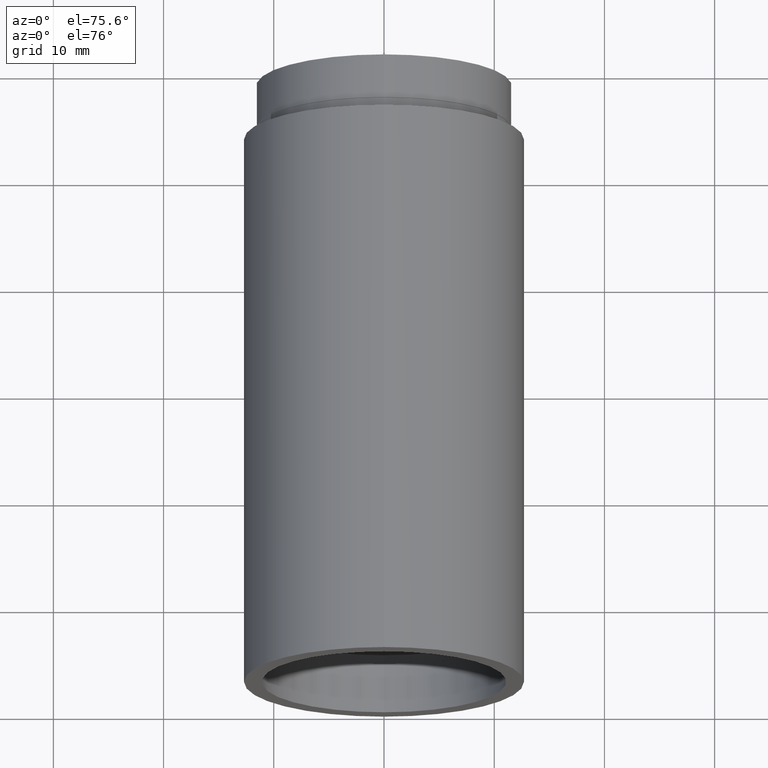
[diagram: clean part render]
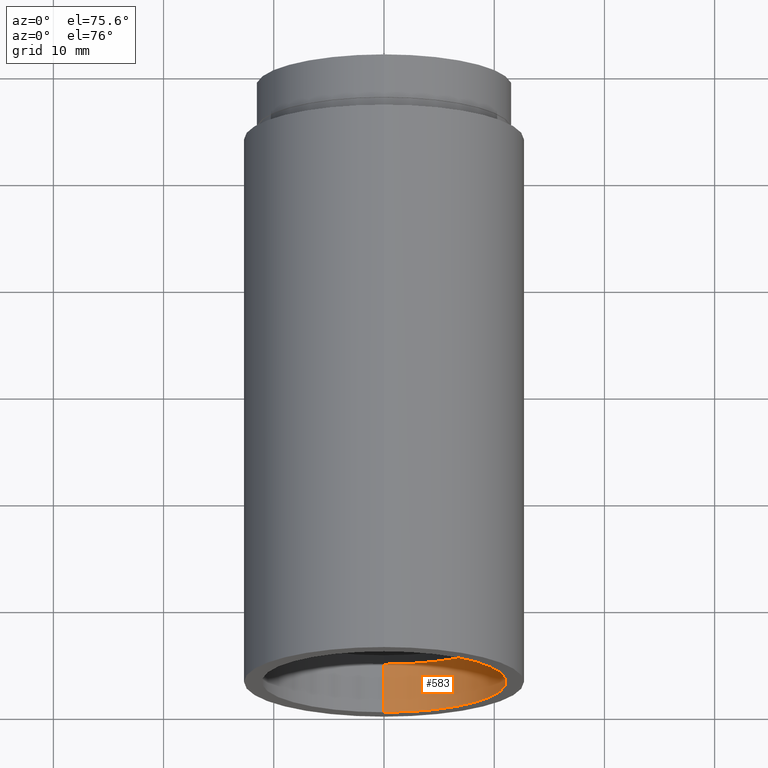
[diagram: same view with one face highlighted and labeled with its STEP entity id]
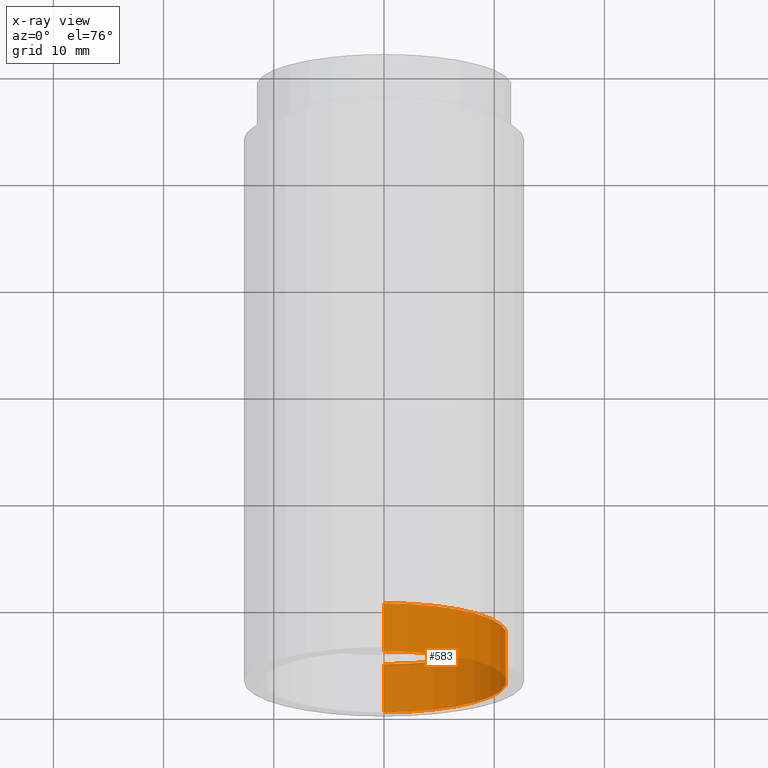
[diagram: x-ray of the same camera — body ghosted, the highlighted face saturated]
A machine part, auxiliary view. The second image highlights one B-rep face of the part: STEP entity #583.
The next image is the same camera in x-ray: the body ghosted, the highlighted face saturated — about 0% of this face is hidden behind the body in this view.
In plain terms, the highlighted cylindrical surface (partial cylindrical patch) has radius 11.1 mm, axis along (-0, 1, -0).
Its self-contained STEP definition (entity closure, byte-faithful):
#1 = AXIS2_PLACEMENT_3D ( 'NONE', #265, #24, #215 ) ;
#8 = DIRECTION ( 'NONE',  ( -0.0000000000000000000, 1.000000000000000000, -0.0000000000000000000 ) ) ;
#24 = DIRECTION ( 'NONE',  ( -0.0000000000000000000, 1.000000000000000000, -0.0000000000000000000 ) ) ;
#77 = VECTOR ( 'NONE', #286, 1000.000000000000000 ) ;
#84 = CIRCLE ( 'NONE', #1, 11.10000000000001700 ) ;
#113 = LINE ( 'NONE', #546, #624 ) ;
#146 = CYLINDRICAL_SURFACE ( 'NONE', #196, 11.10000000000001700 ) ;
#163 = AXIS2_PLACEMENT_3D ( 'NONE', #593, #608, #371 ) ;
#175 = CIRCLE ( 'NONE', #163, 11.10000000000001700 ) ;
#189 = EDGE_CURVE ( 'NONE', #338, #603, #207, .T. ) ;
#196 = AXIS2_PLACEMENT_3D ( 'NONE', #534, #8, #587 ) ;
#207 = LINE ( 'NONE', #517, #77 ) ;
#215 = DIRECTION ( 'NONE',  ( 0.0000000000000000000, 0.0000000000000000000, 1.000000000000000000 ) ) ;
#242 = ORIENTED_EDGE ( 'NONE', *, *, #189, .F. ) ;
#250 = ORIENTED_EDGE ( 'NONE', *, *, #441, .T. ) ;
#258 = CARTESIAN_POINT ( 'NONE',  ( 1.359357947053564100E-015, 4.499999999999976000, -11.10000000000001700 ) ) ;
#265 = CARTESIAN_POINT ( 'NONE',  ( 0.0000000000000000000, -2.775557561562891400E-014, 0.0000000000000000000 ) ) ;
#280 = CARTESIAN_POINT ( 'NONE',  ( 0.0000000000000000000, 4.499999999999976000, 11.10000000000001700 ) ) ;
#286 = DIRECTION ( 'NONE',  ( -0.0000000000000000000, 1.000000000000000000, -0.0000000000000000000 ) ) ;
#298 = EDGE_LOOP ( 'NONE', ( #242, #468, #250, #429 ) ) ;
#317 = VERTEX_POINT ( 'NONE', #280 ) ;
#319 = CARTESIAN_POINT ( 'NONE',  ( 0.0000000000000000000, -2.775557561562891400E-014, 11.10000000000001700 ) ) ;
#338 = VERTEX_POINT ( 'NONE', #461 ) ;
#356 = DIRECTION ( 'NONE',  ( -0.0000000000000000000, 1.000000000000000000, -0.0000000000000000000 ) ) ;
#371 = DIRECTION ( 'NONE',  ( 0.0000000000000000000, 0.0000000000000000000, 1.000000000000000000 ) ) ;
#373 = FACE_OUTER_BOUND ( 'NONE', #298, .T. ) ;
#429 = ORIENTED_EDGE ( 'NONE', *, *, #570, .T. ) ;
#441 = EDGE_CURVE ( 'NONE', #564, #317, #113, .T. ) ;
#461 = CARTESIAN_POINT ( 'NONE',  ( 1.359357947053564100E-015, -2.775557561562891400E-014, -11.10000000000001700 ) ) ;
#468 = ORIENTED_EDGE ( 'NONE', *, *, #505, .F. ) ;
#505 = EDGE_CURVE ( 'NONE', #564, #338, #84, .T. ) ;
#517 = CARTESIAN_POINT ( 'NONE',  ( 1.359357947053564100E-015, 161.3761669434274500, -11.10000000000001700 ) ) ;
#534 = CARTESIAN_POINT ( 'NONE',  ( 0.0000000000000000000, 161.3761669434274500, 0.0000000000000000000 ) ) ;
#546 = CARTESIAN_POINT ( 'NONE',  ( 0.0000000000000000000, 161.3761669434274500, 11.10000000000001700 ) ) ;
#564 = VERTEX_POINT ( 'NONE', #319 ) ;
#570 = EDGE_CURVE ( 'NONE', #317, #603, #175, .T. ) ;
#583 = ADVANCED_FACE ( 'NONE', ( #373 ), #146, .F. ) ;
#587 = DIRECTION ( 'NONE',  ( 0.0000000000000000000, 0.0000000000000000000, 1.000000000000000000 ) ) ;
#593 = CARTESIAN_POINT ( 'NONE',  ( 0.0000000000000000000, 4.499999999999976000, 0.0000000000000000000 ) ) ;
#603 = VERTEX_POINT ( 'NONE', #258 ) ;
#608 = DIRECTION ( 'NONE',  ( -0.0000000000000000000, 1.000000000000000000, -0.0000000000000000000 ) ) ;
#624 = VECTOR ( 'NONE', #356, 1000.000000000000000 ) ;